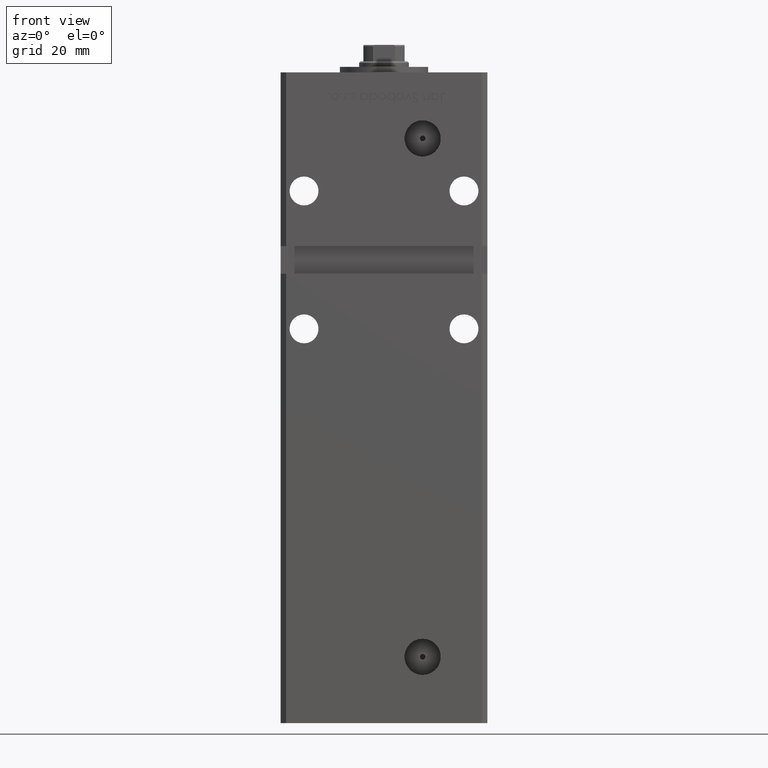
[diagram: clean part render]
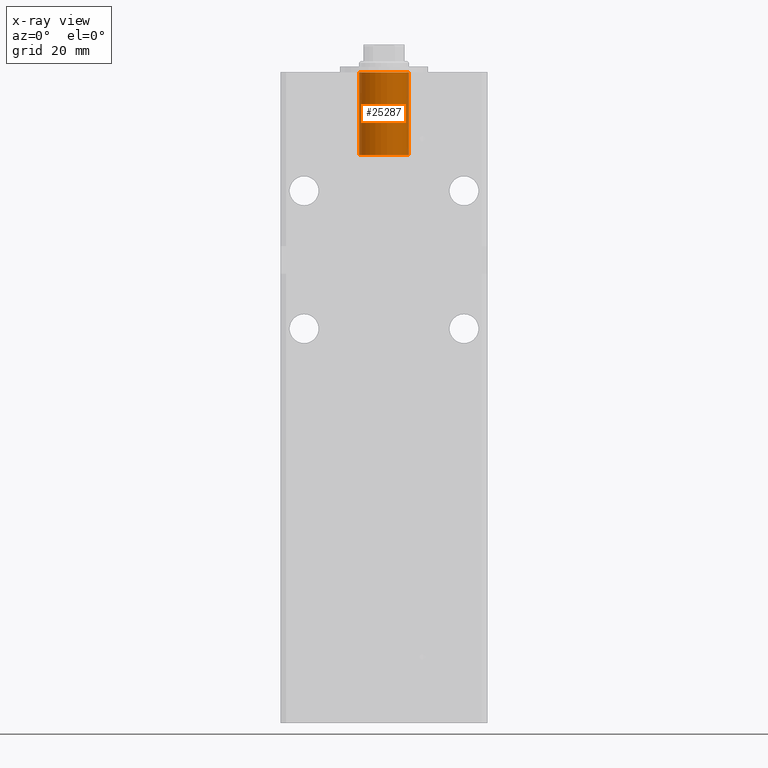
[diagram: x-ray — body ghosted, one internal face saturated and labeled with its STEP entity id]
A machine part, front view, then the same camera in x-ray: the body is ghosted and one INTERNAL B-rep face — a face not visible from any outside direction — is saturated and labeled: STEP entity #25287.
In plain terms, the highlighted cylindrical surface (edge-blend (fillet) strip) has radius 9 mm, axis along (0, 0, 1).
Its self-contained STEP definition (entity closure, byte-faithful):
#233 = ORIENTED_EDGE ( 'NONE', *, *, #29353, .F. ) ;
#401 = CARTESIAN_POINT ( 'NONE',  ( -8.999999999999996447, -5.836711784674611255E-15, 0.000000000000000000 ) ) ;
#1352 = CARTESIAN_POINT ( 'NONE',  ( 0.000000000000000000, -6.938893903907228378E-15, -30.00000000000000000 ) ) ;
#2468 = VERTEX_POINT ( 'NONE', #401 ) ;
#2636 = DIRECTION ( 'NONE',  ( -0.000000000000000000, -0.000000000000000000, 1.000000000000000000 ) ) ;
#3196 = CARTESIAN_POINT ( 'NONE',  ( 8.999999999999996447, -6.938893903907228378E-15, 0.000000000000000000 ) ) ;
#5156 = ORIENTED_EDGE ( 'NONE', *, *, #29354, .F. ) ;
#5393 = VERTEX_POINT ( 'NONE', #21496 ) ;
#7857 = CARTESIAN_POINT ( 'NONE',  ( -8.999999999999996447, -5.836711784674611255E-15, -30.00000000000000000 ) ) ;
#8663 = CARTESIAN_POINT ( 'NONE',  ( 0.000000000000000000, -6.938893903907228378E-15, 0.000000000000000000 ) ) ;
#11515 = LINE ( 'NONE', #23600, #38259 ) ;
#15257 = ORIENTED_EDGE ( 'NONE', *, *, #23230, .T. ) ;
#19404 = ORIENTED_EDGE ( 'NONE', *, *, #27412, .T. ) ;
#20053 = VERTEX_POINT ( 'NONE', #3196 ) ;
#21496 = CARTESIAN_POINT ( 'NONE',  ( 8.999999999999996447, -6.938893903907228378E-15, -30.00000000000000000 ) ) ;
#23230 = EDGE_CURVE ( 'NONE', #42073, #2468, #11515, .T. ) ;
#23600 = CARTESIAN_POINT ( 'NONE',  ( -8.999999999999996447, -5.836711784674611255E-15, -30.00000000000000000 ) ) ;
#25030 = DIRECTION ( 'NONE',  ( 1.000000000000000000, 0.000000000000000000, 0.000000000000000000 ) ) ;
#25287 = ADVANCED_FACE ( 'NONE', ( #51399 ), #47898, .F. ) ;
#27063 = CIRCLE ( 'NONE', #45108, 8.999999999999996447 ) ;
#27137 = CIRCLE ( 'NONE', #37449, 8.999999999999996447 ) ;
#27412 = EDGE_CURVE ( 'NONE', #2468, #20053, #27063, .T. ) ;
#27951 = DIRECTION ( 'NONE',  ( 1.000000000000000000, 0.000000000000000000, 0.000000000000000000 ) ) ;
#28535 = DIRECTION ( 'NONE',  ( 0.000000000000000000, 0.000000000000000000, 1.000000000000000000 ) ) ;
#29353 = EDGE_CURVE ( 'NONE', #42073, #5393, #27137, .T. ) ;
#29354 = EDGE_CURVE ( 'NONE', #5393, #20053, #33882, .T. ) ;
#30369 = DIRECTION ( 'NONE',  ( 1.000000000000000000, 0.000000000000000000, 0.000000000000000000 ) ) ;
#33165 = VECTOR ( 'NONE', #50032, 1000.000000000000000 ) ;
#33620 = DIRECTION ( 'NONE',  ( 0.000000000000000000, 0.000000000000000000, 1.000000000000000000 ) ) ;
#33882 = LINE ( 'NONE', #50294, #33165 ) ;
#37449 = AXIS2_PLACEMENT_3D ( 'NONE', #1352, #33620, #30369 ) ;
#38259 = VECTOR ( 'NONE', #2636, 1000.000000000000000 ) ;
#39537 = DIRECTION ( 'NONE',  ( -0.000000000000000000, -0.000000000000000000, 1.000000000000000000 ) ) ;
#42073 = VERTEX_POINT ( 'NONE', #7857 ) ;
#42321 = EDGE_LOOP ( 'NONE', ( #233, #15257, #19404, #5156 ) ) ;
#45108 = AXIS2_PLACEMENT_3D ( 'NONE', #8663, #28535, #25030 ) ;
#47898 = CYLINDRICAL_SURFACE ( 'NONE', #50373, 8.999999999999996447 ) ;
#50032 = DIRECTION ( 'NONE',  ( -0.000000000000000000, -0.000000000000000000, 1.000000000000000000 ) ) ;
#50294 = CARTESIAN_POINT ( 'NONE',  ( 8.999999999999996447, -6.938893903907228378E-15, -30.00000000000000000 ) ) ;
#50373 = AXIS2_PLACEMENT_3D ( 'NONE', #51664, #39537, #27951 ) ;
#51399 = FACE_OUTER_BOUND ( 'NONE', #42321, .T. ) ;
#51664 = CARTESIAN_POINT ( 'NONE',  ( 0.000000000000000000, -6.938893903907228378E-15, -30.00000000000000000 ) ) ;